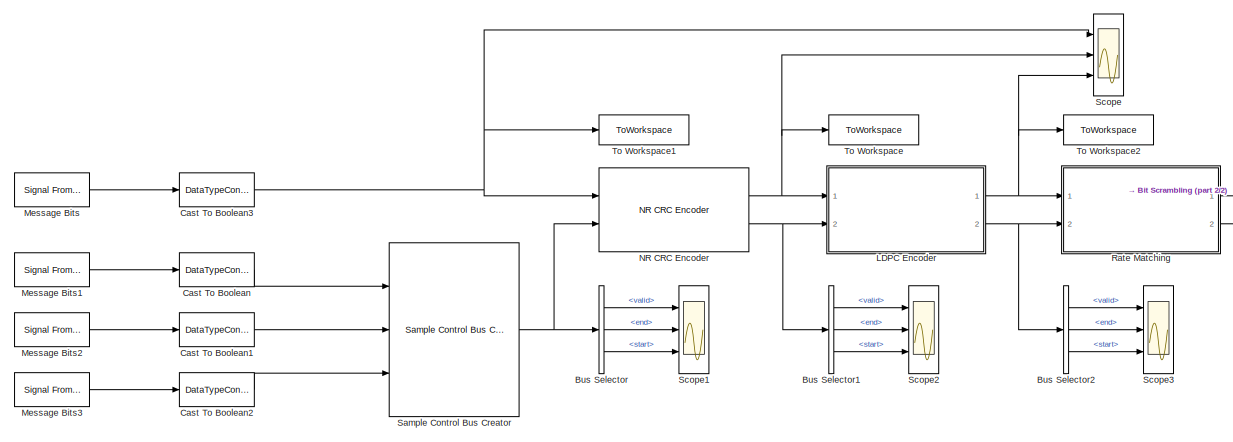
[diagram: root canvas - part 1/2, center side, full height]
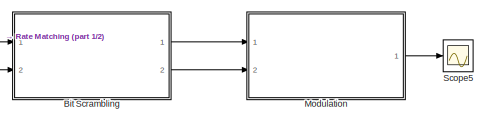
[diagram: root canvas - part 2/2, middle right region]
MODEL slx_336d558a8b43
KIND model
CONFIG AbsTol = auto
CONFIG EnableMultiTasking = off
CONFIG FixedStep = auto
CONFIG MaxStep = auto
CONFIG MinStep = auto
CONFIG RelTol = 1e-3
CONFIG SampleTimeConstraint = Unconstrained
CONFIG SolverName = VariableStepAuto
CONFIG StartTime = 0.0
CONFIG StopTime = 60
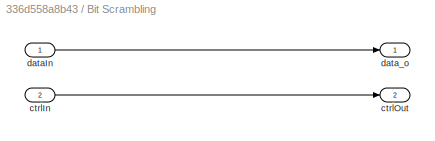
BLOCK [SubSystem] Bit Scrambling
  Ports = [2, 2]
  RequestExecContextInheritance = off
BLOCK [Inport] Bit Scrambling/ctrlIn
  Port = 2
BLOCK [Outport] Bit Scrambling/ctrlOut
  Port = 2
BLOCK [Inport] Bit Scrambling/dataIn
BLOCK [Outport] Bit Scrambling/data_o
BLOCK [BusSelector] Bus Selector
  OutputSignals = valid,end,start
  Ports = [1, 3]
BLOCK [BusSelector] Bus Selector1
  OutputSignals = valid,end,start
  Ports = [1, 3]
BLOCK [BusSelector] Bus Selector2
  OutputSignals = valid,end,start
  Ports = [1, 3]
BLOCK [DataTypeConversion] Cast To Boolean
  OutDataTypeStr = boolean
  RndMeth = Floor
  SaturateOnIntegerOverflow = off
BLOCK [DataTypeConversion] Cast To Boolean1
  OutDataTypeStr = boolean
  RndMeth = Floor
  SaturateOnIntegerOverflow = off
BLOCK [DataTypeConversion] Cast To Boolean2
  OutDataTypeStr = boolean
  RndMeth = Floor
  SaturateOnIntegerOverflow = off
BLOCK [DataTypeConversion] Cast To Boolean3
  OutDataTypeStr = boolean
  RndMeth = Floor
  SaturateOnIntegerOverflow = off
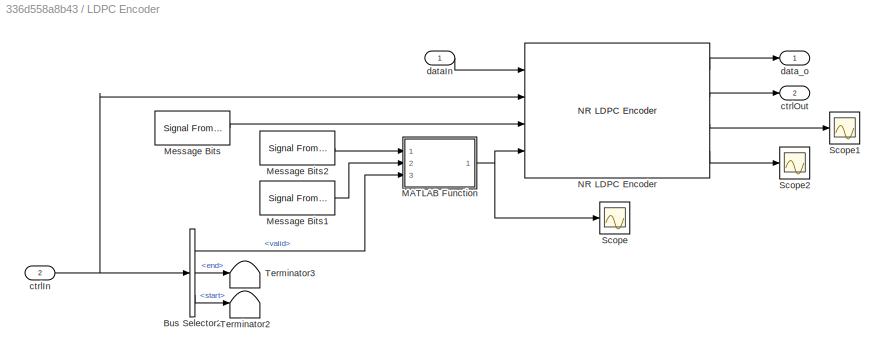
BLOCK [SubSystem] LDPC Encoder
  Ports = [2, 2]
  RequestExecContextInheritance = off
BLOCK [BusSelector] LDPC Encoder/Bus Selector2
  OutputSignals = valid,end,start
  Ports = [1, 3]
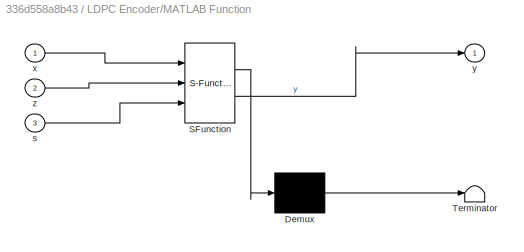
BLOCK [SubSystem] LDPC Encoder/MATLAB Function
  ErrorFcn = Stateflow.Translate.translate
  PermitHierarchicalResolution = ExplicitOnly
  Ports = [3, 1]
  RequestExecContextInheritance = off
  SFBlockType = MATLAB Function
  TreatAsAtomicUnit = on
BLOCK [Demux] LDPC Encoder/MATLAB Function/ Demux 
  Outputs = 1
  Ports = [1, 1]
BLOCK [S-Function] LDPC Encoder/MATLAB Function/ SFunction 
  EnableBusSupport = on
  FunctionName = sf_sfun
  PortCounts = [3 2]
  Ports = [3, 2]
  SFcnIsStateOwnerBlock = off
  SFunctionDeploymentMode = off
  Tag = Stateflow S-Function 1
BLOCK [Terminator] LDPC Encoder/MATLAB Function/ Terminator 
BLOCK [Inport] LDPC Encoder/MATLAB Function/s
  Port = 3
BLOCK [Inport] LDPC Encoder/MATLAB Function/x
BLOCK [Outport] LDPC Encoder/MATLAB Function/y
BLOCK [Inport] LDPC Encoder/MATLAB Function/z
  Port = 2
BLOCK [Reference] LDPC Encoder/Message Bits  REF=dspsrcs4/Signal From
Workspace
  Ports = [0, 1]
  SourceBlock = dspsrcs4/Signal From\nWorkspace
  SourceProductBaseCode = DS
  SourceType = Signal From Workspace
BLOCK [Reference] LDPC Encoder/Message Bits1  REF=dspsrcs4/Signal From
Workspace
  Ports = [0, 1]
  SourceBlock = dspsrcs4/Signal From\nWorkspace
  SourceProductBaseCode = DS
  SourceType = Signal From Workspace
BLOCK [Reference] LDPC Encoder/Message Bits2  REF=dspsrcs4/Signal From
Workspace
  Ports = [0, 1]
  SourceBlock = dspsrcs4/Signal From\nWorkspace
  SourceProductBaseCode = DS
  SourceType = Signal From Workspace
BLOCK [Reference] LDPC Encoder/NR LDPC Encoder  REF=whdledac/NR LDPC Encoder
  Ports = [4, 4]
  SourceBlock = whdledac/NR LDPC Encoder
  SourceProductBaseCode = LH
  SourceType = NR LDPC Encoder
BLOCK [Scope] LDPC Encoder/Scope
  Floating = off
  NumInputPorts = 1
  Ports = [1]
  ScopeSpecificationString = Simulink.scopes.TimeScopeBlockCfg('CurrentConfiguration', extmgr.ConfigurationSet(extmgr.Configuration('Core','General UI',true),extmgr.Configuration('Core','Source UI',true),extmgr.Configuration('Sources','WiredSimulink',true,'DataLoggingVariableName','ScopeData1'),extmgr.Configuration('Visuals','Time Domain',true,'SerializedDisplays',{struct('MinYLimReal','-0.5','MaxYLimReal','4.5','YLabelReal',...<+1405ch>
BLOCK [Scope] LDPC Encoder/Scope1
  Floating = off
  NumInputPorts = 1
  Ports = [1]
  ScopeSpecificationString = Simulink.scopes.TimeScopeBlockCfg('CurrentConfiguration', extmgr.ConfigurationSet(extmgr.Configuration('Core','General UI',true),extmgr.Configuration('Core','Source UI',true),extmgr.Configuration('Sources','WiredSimulink',true,'DataLoggingVariableName','ScopeData2'),extmgr.Configuration('Visuals','Time Domain',true,'SerializedDisplays',{struct('MinYLimReal','-0.5','MaxYLimReal','4.5','YLabelReal',...<+1407ch>
BLOCK [Scope] LDPC Encoder/Scope2
  Floating = off
  NumInputPorts = 1
  Ports = [1]
  ScopeSpecificationString = Simulink.scopes.TimeScopeBlockCfg('CurrentConfiguration', extmgr.ConfigurationSet(extmgr.Configuration('Core','General UI',true),extmgr.Configuration('Core','Source UI',true),extmgr.Configuration('Sources','WiredSimulink',true,'DataLoggingVariableName','ScopeData3'),extmgr.Configuration('Visuals','Time Domain',true,'SerializedDisplays',{struct('MinYLimReal','-0.125','MaxYLimReal','1.125','YLabelRe...<+1427ch>
BLOCK [Terminator] LDPC Encoder/Terminator2
BLOCK [Terminator] LDPC Encoder/Terminator3
BLOCK [Inport] LDPC Encoder/ctrlIn
  Port = 2
BLOCK [Outport] LDPC Encoder/ctrlOut
  Port = 2
BLOCK [Inport] LDPC Encoder/dataIn
BLOCK [Outport] LDPC Encoder/data_o
BLOCK [Reference] Message Bits  REF=dspsrcs4/Signal From
Workspace
  Ports = [0, 1]
  SourceBlock = dspsrcs4/Signal From\nWorkspace
  SourceProductBaseCode = DS
  SourceType = Signal From Workspace
BLOCK [Reference] Message Bits1  REF=dspsrcs4/Signal From
Workspace
  Ports = [0, 1]
  SourceBlock = dspsrcs4/Signal From\nWorkspace
  SourceProductBaseCode = DS
  SourceType = Signal From Workspace
BLOCK [Reference] Message Bits2  REF=dspsrcs4/Signal From
Workspace
  Ports = [0, 1]
  SourceBlock = dspsrcs4/Signal From\nWorkspace
  SourceProductBaseCode = DS
  SourceType = Signal From Workspace
BLOCK [Reference] Message Bits3  REF=dspsrcs4/Signal From
Workspace
  Ports = [0, 1]
  SourceBlock = dspsrcs4/Signal From\nWorkspace
  SourceProductBaseCode = DS
  SourceType = Signal From Workspace
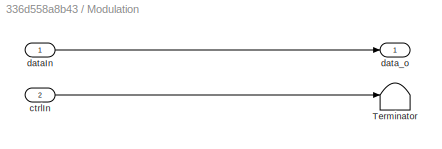
BLOCK [SubSystem] Modulation
  Ports = [2, 1]
  RequestExecContextInheritance = off
BLOCK [Terminator] Modulation/Terminator
BLOCK [Inport] Modulation/ctrlIn
  Port = 2
BLOCK [Inport] Modulation/dataIn
BLOCK [Outport] Modulation/data_o
BLOCK [Reference] NR CRC Encoder  REF=whdledac/NR CRC Encoder
  Ports = [2, 2]
  SourceBlock = whdledac/NR CRC Encoder
  SourceProductBaseCode = LH
  SourceType = NR CRC Encoder
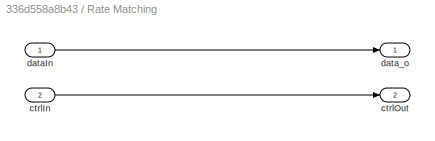
BLOCK [SubSystem] Rate Matching
  Ports = [2, 2]
  RequestExecContextInheritance = off
BLOCK [Inport] Rate Matching/ctrlIn
  Port = 2
BLOCK [Outport] Rate Matching/ctrlOut
  Port = 2
BLOCK [Inport] Rate Matching/dataIn
BLOCK [Outport] Rate Matching/data_o
BLOCK [Reference] Sample Control Bus Creator  REF=whdlutilities/Sample Control
Bus Creator
  Ports = [3, 1]
  SourceBlock = whdlutilities/Sample Control\nBus Creator
  SourceProductBaseCode = LH
  SourceType = Sample Control Bus Creator
BLOCK [Scope] Scope
  Floating = off
  NumInputPorts = 3
  Ports = [3]
  ScopeSpecificationString = Simulink.scopes.TimeScopeBlockCfg('CurrentConfiguration', extmgr.ConfigurationSet(extmgr.Configuration('Core','General UI',true),extmgr.Configuration('Core','Source UI',true),extmgr.Configuration('Sources','WiredSimulink',true),extmgr.Configuration('Visuals','Time Domain',true,'SerializedDisplays',{struct('MinYLimReal','-0.125','MaxYLimReal','1.125','YLabelReal','','MinYLimMag','0.00000','MaxYLimM...<+2729ch>
BLOCK [Scope] Scope1
  Floating = off
  NumInputPorts = 3
  Ports = [3]
  ScopeSpecificationString = Simulink.scopes.TimeScopeBlockCfg('CurrentConfiguration', extmgr.ConfigurationSet(extmgr.Configuration('Core','General UI',true),extmgr.Configuration('Core','Source UI',true),extmgr.Configuration('Sources','WiredSimulink',true,'DataLoggingVariableName','ScopeData1'),extmgr.Configuration('Visuals','Time Domain',true,'SerializedDisplays',{struct('MinYLimReal','-0.125','MaxYLimReal','1.125','YLabelRe...<+2726ch>
BLOCK [Scope] Scope2
  Floating = off
  NumInputPorts = 3
  Ports = [3]
  ScopeSpecificationString = Simulink.scopes.TimeScopeBlockCfg('CurrentConfiguration', extmgr.ConfigurationSet(extmgr.Configuration('Core','General UI',true),extmgr.Configuration('Core','Source UI',true),extmgr.Configuration('Sources','WiredSimulink',true,'DataLoggingVariableName','ScopeData1'),extmgr.Configuration('Visuals','Time Domain',true,'SerializedDisplays',{struct('MinYLimReal','-0.125','MaxYLimReal','1.125','YLabelRe...<+2726ch>
BLOCK [Scope] Scope3
  Floating = off
  NumInputPorts = 3
  Ports = [3]
  ScopeSpecificationString = Simulink.scopes.TimeScopeBlockCfg('CurrentConfiguration', extmgr.ConfigurationSet(extmgr.Configuration('Core','General UI',true),extmgr.Configuration('Core','Source UI',true),extmgr.Configuration('Sources','WiredSimulink',true,'DataLoggingVariableName','ScopeData2'),extmgr.Configuration('Visuals','Time Domain',true,'SerializedDisplays',{struct('MinYLimReal','-0.125','MaxYLimReal','1.125','YLabelRe...<+2727ch>
BLOCK [Scope] Scope5
  Floating = off
  NumInputPorts = 1
  Ports = [1]
  ScopeSpecificationString = Simulink.scopes.TimeScopeBlockCfg('CurrentConfiguration', extmgr.ConfigurationSet(extmgr.Configuration('Core','General UI',true),extmgr.Configuration('Core','Source UI',true),extmgr.Configuration('Sources','WiredSimulink',true,'DataLoggingVariableName','ScopeData2'),extmgr.Configuration('Visuals','Time Domain',true),extmgr.Configuration('Tools','Plot Navigation',true),extmgr.Configuration('Tools',...<+40ch>
BLOCK [ToWorkspace] To Workspace
  FixptAsFi = on
  MaxDataPoints = inf
  Ports = [1]
  SampleTime = 1
  Save2DSignal = 2-D array (concatenate along first dimension)
  VariableName = CRC_output
BLOCK [ToWorkspace] To Workspace1
  FixptAsFi = on
  MaxDataPoints = inf
  Ports = [1]
  SampleTime = 1
  Save2DSignal = 2-D array (concatenate along first dimension)
  VariableName = Data_In
BLOCK [ToWorkspace] To Workspace2
  FixptAsFi = on
  MaxDataPoints = inf
  Ports = [1]
  SampleTime = 1
  Save2DSignal = 2-D array (concatenate along first dimension)
  VariableName = LDPC_output
LINE Bit Scrambling/ctrlIn:1 -> Bit Scrambling/ctrlOut:1
LINE Bit Scrambling/dataIn:1 -> Bit Scrambling/data_o:1
LINE Bit Scrambling:1 -> Modulation:1
LINE Bit Scrambling:2 -> Modulation:2
LINE Bus Selector1:1 -> Scope2:1
LINE Bus Selector1:2 -> Scope2:2
LINE Bus Selector1:3 -> Scope2:3
LINE Bus Selector2:1 -> Scope3:1
LINE Bus Selector2:2 -> Scope3:2
LINE Bus Selector2:3 -> Scope3:3
LINE Bus Selector:1 -> Scope1:1
LINE Bus Selector:2 -> Scope1:2
LINE Bus Selector:3 -> Scope1:3
LINE Cast To Boolean1:1 -> Sample Control Bus Creator:2
LINE Cast To Boolean2:1 -> Sample Control Bus Creator:3
NET Cast To Boolean3:1 -> NR CRC Encoder:1, Scope:1, To Workspace1:1
LINE Cast To Boolean:1 -> Sample Control Bus Creator:1
LINE LDPC Encoder/Bus Selector2:1 -> LDPC Encoder/MATLAB Function:3
LINE LDPC Encoder/Bus Selector2:2 -> LDPC Encoder/Terminator3:1
LINE LDPC Encoder/Bus Selector2:3 -> LDPC Encoder/Terminator2:1
NET LDPC Encoder/MATLAB Function:1 -> LDPC Encoder/NR LDPC Encoder:4, LDPC Encoder/Scope:1
LINE LDPC Encoder/Message Bits1:1 -> LDPC Encoder/MATLAB Function:2
LINE LDPC Encoder/Message Bits2:1 -> LDPC Encoder/MATLAB Function:1
LINE LDPC Encoder/Message Bits:1 -> LDPC Encoder/NR LDPC Encoder:3
LINE LDPC Encoder/NR LDPC Encoder:1 -> LDPC Encoder/data_o:1
LINE LDPC Encoder/NR LDPC Encoder:2 -> LDPC Encoder/ctrlOut:1
LINE LDPC Encoder/NR LDPC Encoder:3 -> LDPC Encoder/Scope1:1
LINE LDPC Encoder/NR LDPC Encoder:4 -> LDPC Encoder/Scope2:1
NET LDPC Encoder/ctrlIn:1 -> LDPC Encoder/Bus Selector2:1, LDPC Encoder/NR LDPC Encoder:2
LINE LDPC Encoder/dataIn:1 -> LDPC Encoder/NR LDPC Encoder:1
NET LDPC Encoder:1 -> Rate Matching:1, Scope:3, To Workspace2:1
NET LDPC Encoder:2 -> Bus Selector2:1, Rate Matching:2
LINE Message Bits1:1 -> Cast To Boolean:1
LINE Message Bits2:1 -> Cast To Boolean1:1
LINE Message Bits3:1 -> Cast To Boolean2:1
LINE Message Bits:1 -> Cast To Boolean3:1
LINE Modulation/ctrlIn:1 -> Modulation/Terminator:1
LINE Modulation/dataIn:1 -> Modulation/data_o:1
LINE Modulation:1 -> Scope5:1
NET NR CRC Encoder:1 -> LDPC Encoder:1, Scope:2, To Workspace:1
NET NR CRC Encoder:2 -> Bus Selector1:1, LDPC Encoder:2
LINE Rate Matching/ctrlIn:1 -> Rate Matching/ctrlOut:1
LINE Rate Matching/dataIn:1 -> Rate Matching/data_o:1
LINE Rate Matching:1 -> Bit Scrambling:1
LINE Rate Matching:2 -> Bit Scrambling:2
NET Sample Control Bus Creator:1 -> Bus Selector:1, NR CRC Encoder:2
note: NET lines group one-source signal fan-out (src -> all destinations, sorted); 1:1 wires keep LINE
CHART LDPC Encoder/MATLAB Function states=1 transitions=1
  STATE_LABEL 'eML_blk_kernel()'
  STATE_LABEL 'SCRIPT:\nfunction y = selector(x, z, s)\n    if(s == false)\n        y = x;\n    else\n        y = z;\n    end\nend\n\n'
CHART  states=0 transitions=0
